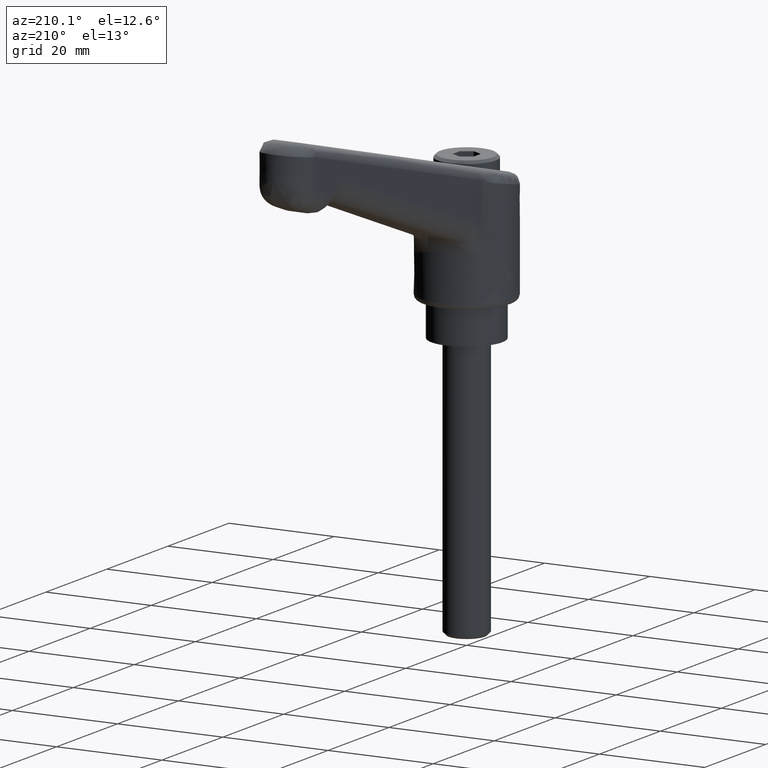
[diagram: clean part render]
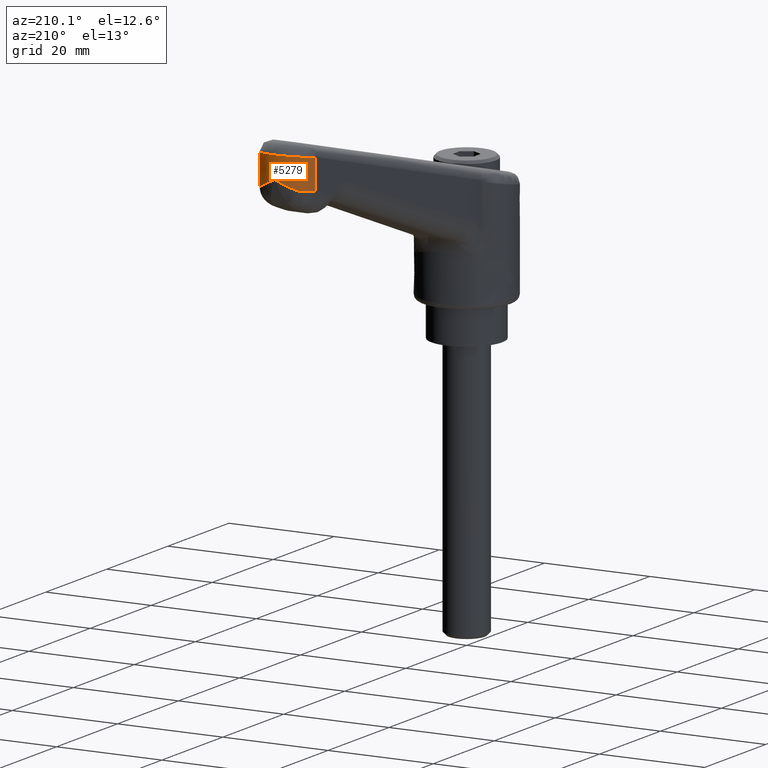
[diagram: same view with one face highlighted and labeled with its STEP entity id]
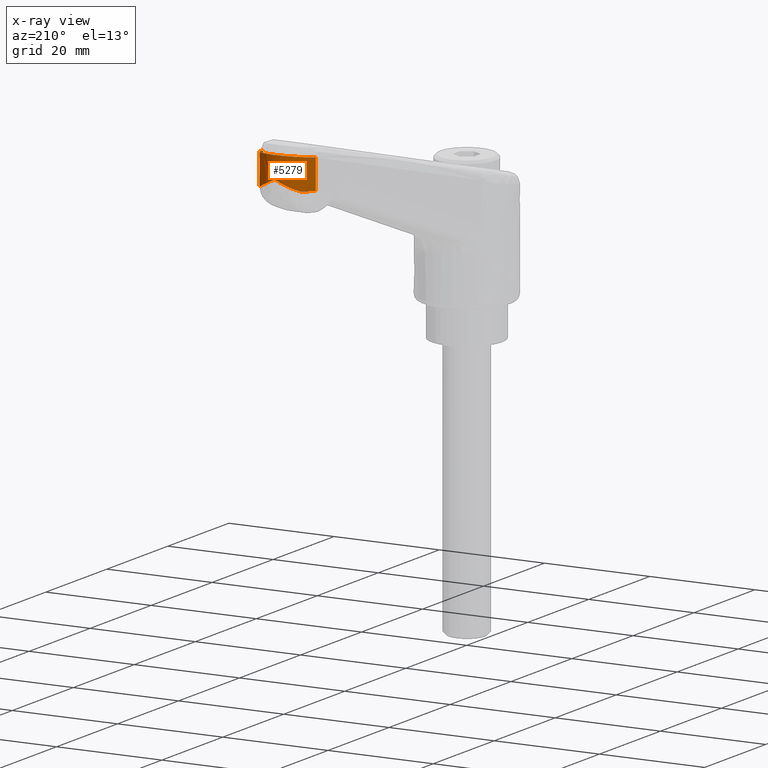
[diagram: x-ray of the same camera — body ghosted, the highlighted face saturated]
A machine part, auxiliary view. The second image highlights one B-rep face of the part: STEP entity #5279.
The next image is the same camera in x-ray: the body ghosted, the highlighted face saturated — about 0% of this face is hidden behind the body in this view.
In plain terms, the highlighted face is a freeform B-spline surface patch.
Its self-contained STEP definition (entity closure, byte-faithful):
#2392=CARTESIAN_POINT('',(63.0,-0.000003090441989,38.852661000000047));
#2393=VERTEX_POINT('',#2392);
#2394=CARTESIAN_POINT('',(61.207488032759898,3.835622089330110,36.906399749050749));
#2395=VERTEX_POINT('',#2394);
#2396=CARTESIAN_POINT('',(63.0,-0.000003090441989,38.852661000000047));
#2397=CARTESIAN_POINT('',(63.003499277688142,0.404625075239275,38.658286478293071));
#2398=CARTESIAN_POINT('',(62.905546229850152,1.234735005603611,38.253547635953041));
#2399=CARTESIAN_POINT('',(62.530480097378387,2.187180288918853,37.774239620099983));
#2400=CARTESIAN_POINT('',(61.971624483110958,3.078844789024702,37.313718771831979));
#2401=CARTESIAN_POINT('',(61.546546010508592,3.545222788745748,37.065304609706892));
#2402=CARTESIAN_POINT('',(61.207488032759898,3.835622089330110,36.906399749050749));
#2403=B_SPLINE_CURVE_WITH_KNOTS('',3,(#2396,#2397,#2398,#2399,#2400,#2401,#2402),.UNSPECIFIED.,.F.,.U.,(4,1,1,1,4),(0.000000023360596,1.346724014153976,2.768260674521946,3.366806567464430,4.788349716826214),.UNSPECIFIED.);
#2404=EDGE_CURVE('',#2393,#2395,#2403,.T.);
#2896=CARTESIAN_POINT('',(61.207488032757297,-3.835628270216300,36.906399749050451));
#2897=VERTEX_POINT('',#2896);
#2998=CARTESIAN_POINT('',(61.207488032757297,-3.835628270216300,36.906399749050451));
#2999=CARTESIAN_POINT('',(61.527922097387417,-3.559590697344746,37.056495229659269));
#3000=CARTESIAN_POINT('',(61.955087279046602,-3.095253478925448,37.303118560464213));
#3001=CARTESIAN_POINT('',(62.519619695374757,-2.206295681312349,37.762001969766217));
#3002=CARTESIAN_POINT('',(62.903214173816281,-1.233295628928677,38.251992653624477));
#3003=CARTESIAN_POINT('',(63.002538582448892,-0.404163996082766,38.657611365323007));
#3004=CARTESIAN_POINT('',(63.0,-0.000003090441989,38.852661000000047));
#3005=B_SPLINE_CURVE_WITH_KNOTS('',3,(#2998,#2999,#3000,#3001,#3002,#3003,#3004),.UNSPECIFIED.,.F.,.U.,(4,1,1,1,4),(0.000000022846470,1.346319035955200,2.019481570983317,3.440590806762280,4.786909819871668),.UNSPECIFIED.);
#3006=EDGE_CURVE('',#2897,#2393,#3005,.T.);
#3442=CARTESIAN_POINT('',(58.143580295737003,-4.997941135143631,36.571850614768152));
#3443=VERTEX_POINT('',#3442);
#3512=CARTESIAN_POINT('',(58.143580295737003,-4.997941135143631,36.571850614768152));
#3513=CARTESIAN_POINT('',(58.490912708974022,-4.988157153939138,36.609775959827651));
#3514=CARTESIAN_POINT('',(59.062279284236602,-4.911703186760807,36.672163671703537));
#3515=CARTESIAN_POINT('',(60.125813331339437,-4.576749723429676,36.788291318250913));
#3516=CARTESIAN_POINT('',(60.793355920758813,-4.182081927189985,36.861180522024362));
#3517=CARTESIAN_POINT('',(61.207488032757297,-3.835628270216300,36.906399749050451));
#3518=B_SPLINE_CURVE_WITH_KNOTS('',3,(#3512,#3513,#3514,#3515,#3516,#3517),.UNSPECIFIED.,.F.,.U.,(4,1,1,4),(0.000000017503873,1.048591232040549,1.730158285256585,3.355486636932141),.UNSPECIFIED.);
#3519=EDGE_CURVE('',#3443,#2897,#3518,.T.);
#3984=CARTESIAN_POINT('',(58.143580295737003,4.997941135143631,36.571850595623957));
#3985=VERTEX_POINT('',#3984);
#4047=CARTESIAN_POINT('',(61.207488032759898,3.835622089330110,36.906399749050749));
#4048=CARTESIAN_POINT('',(60.913487292623259,4.081308175777980,36.874297705515353));
#4049=CARTESIAN_POINT('',(60.298586305167959,4.485301544782951,36.807156452082133));
#4050=CARTESIAN_POINT('',(59.252615200699552,4.882109082264132,36.692946502715813));
#4051=CARTESIAN_POINT('',(58.525642173789421,4.987154573190106,36.613568064943109));
#4052=CARTESIAN_POINT('',(58.143580295737003,4.997941135143631,36.571850595623957));
#4053=B_SPLINE_CURVE_WITH_KNOTS('',3,(#4047,#4048,#4049,#4050,#4051,#4052),.UNSPECIFIED.,.F.,.U.,(4,1,1,4),(0.000000017483682,1.153438047113786,2.202014044330078,3.355452073960183),.UNSPECIFIED.);
#4054=EDGE_CURVE('',#2395,#3985,#4053,.T.);
#4599=CARTESIAN_POINT('',(58.143580295737003,-4.997941135143631,42.228393305217850));
#4600=VERTEX_POINT('',#4599);
#4890=CARTESIAN_POINT('',(58.143580295737003,4.997941135143631,42.228393277722454));
#4891=VERTEX_POINT('',#4890);
#4922=CARTESIAN_POINT('',(58.143580295737003,4.997941135143631,42.228393277722454));
#4923=CARTESIAN_POINT('',(63.000000002130527,4.858426282842101,43.000005584085784));
#4924=CARTESIAN_POINT('',(63.000000002130527,2.070192E-009,43.000005597449722));
#4925=CARTESIAN_POINT('',(63.000000002130527,-4.858426278701716,43.000005610813659));
#4926=CARTESIAN_POINT('',(58.143580295737003,-4.997941135143631,42.228393305217850));
#4934=(BOUNDED_CURVE()B_SPLINE_CURVE(2,(#4922,#4923,#4924,#4925,#4926),.UNSPECIFIED.,.F.,.U.)B_SPLINE_CURVE_WITH_KNOTS((3,2,3),(0.0,0.500000000000000,1.0),.UNSPECIFIED.)CURVE()GEOMETRIC_REPRESENTATION_ITEM()RATIONAL_B_SPLINE_CURVE((1.0,0.717187583105457,1.0,0.717187583105457,1.0))REPRESENTATION_ITEM(''));
#4935=EDGE_CURVE('',#4891,#4600,#4934,.T.);
#5171=CARTESIAN_POINT('',(58.143580295737003,-4.997941135143631,36.571850614768152));
#5172=CARTESIAN_POINT('',(58.143580295737003,-4.997941135143631,42.228393305217850));
#5173=QUASI_UNIFORM_CURVE('',1,(#5171,#5172),.UNSPECIFIED.,.F.,.U.);
#5174=EDGE_CURVE('',#3443,#4600,#5173,.T.);
#5191=CARTESIAN_POINT('',(58.143580295737003,4.997941135143631,42.228393277722454));
#5192=CARTESIAN_POINT('',(58.143580295737003,4.997941135143631,36.571850595623957));
#5193=QUASI_UNIFORM_CURVE('',1,(#5191,#5192),.UNSPECIFIED.,.F.,.U.);
#5194=EDGE_CURVE('',#4891,#3985,#5193,.T.);
#5252=CARTESIAN_POINT('',(58.012700328513539,-4.999986960581535,43.160709472495341));
#5253=CARTESIAN_POINT('',(58.012700328513539,-4.999986960581535,36.407129123702170));
#5254=CARTESIAN_POINT('',(63.056508788158204,-4.987175314372143,43.160709472495341));
#5255=CARTESIAN_POINT('',(63.056508788158204,-4.987175314372143,36.407129123702163));
#5256=CARTESIAN_POINT('',(62.999682656206957,0.056329291216038,43.160709472495341));
#5257=CARTESIAN_POINT('',(62.999682656206957,0.056329291216038,36.407129123702170));
#5258=CARTESIAN_POINT('',(62.942856524255710,5.099833896804225,43.160709472495341));
#5259=CARTESIAN_POINT('',(62.942856524255710,5.099833896804225,36.407129123702163));
#5260=CARTESIAN_POINT('',(57.900039855126458,4.998997606641069,43.160709472495341));
#5261=CARTESIAN_POINT('',(57.900039855126458,4.998997606641069,36.407129123702170));
#5269=(BOUNDED_SURFACE()B_SPLINE_SURFACE(1,2,((#5252,#5254,#5256,#5258,#5260),(#5253,#5255,#5257,#5259,#5261)),.UNSPECIFIED.,.F.,.F.,.U.)B_SPLINE_SURFACE_WITH_KNOTS((2,2),(3,2,3),(0.0,6.753580348793173),(0.0,8.335437076108871,16.670874152217738),.UNSPECIFIED.)GEOMETRIC_REPRESENTATION_ITEM()RATIONAL_B_SPLINE_SURFACE(((1.0,0.704014724455968,1.0,0.704014724455968,1.0),(1.0,0.704014724455968,1.0,0.704014724455968,1.0)))REPRESENTATION_ITEM('')SURFACE());
#5270=ORIENTED_EDGE('',*,*,#3519,.T.);
#5271=ORIENTED_EDGE('',*,*,#3006,.T.);
#5272=ORIENTED_EDGE('',*,*,#2404,.T.);
#5273=ORIENTED_EDGE('',*,*,#4054,.T.);
#5274=ORIENTED_EDGE('',*,*,#5194,.F.);
#5275=ORIENTED_EDGE('',*,*,#4935,.T.);
#5276=ORIENTED_EDGE('',*,*,#5174,.F.);
#5277=EDGE_LOOP('',(#5270,#5271,#5272,#5273,#5274,#5275,#5276));
#5278=FACE_OUTER_BOUND('',#5277,.T.);
#5279=ADVANCED_FACE('',(#5278),#5269,.T.);